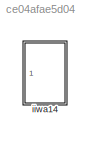
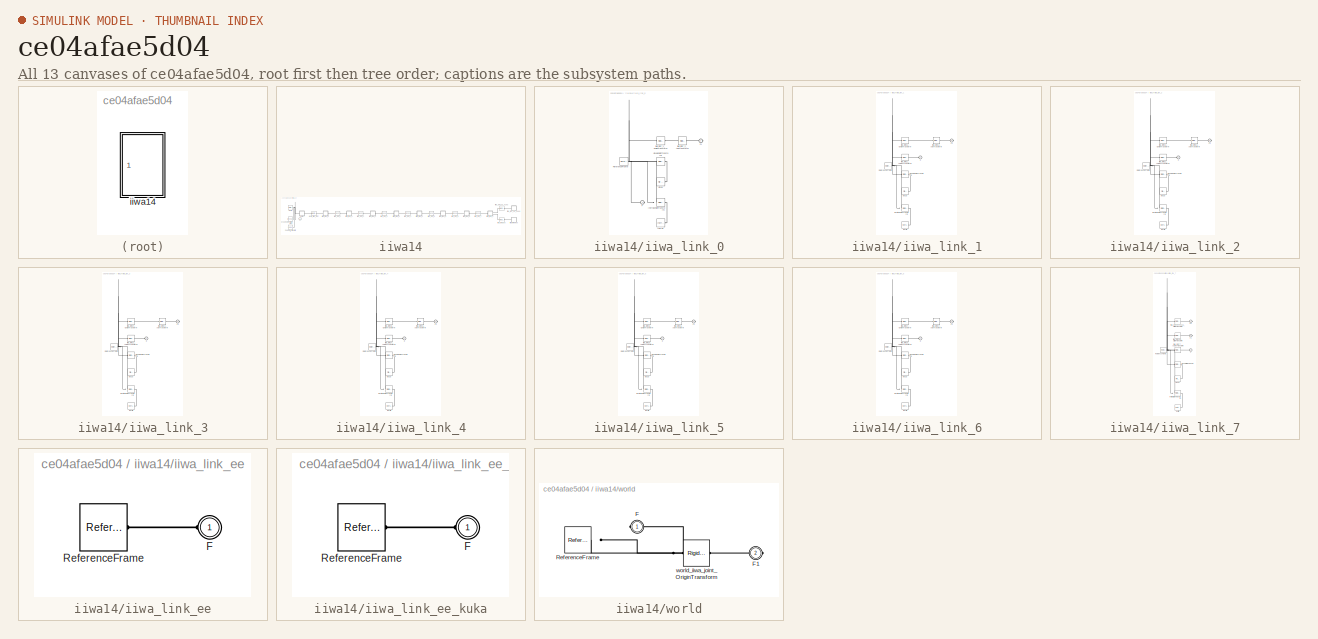
[diagram: thumbnail index - all 13 canvases of the model, root first then tree order]
MODEL slx_ce04afae5d04
KIND model
CONFIG AbsTol = auto
CONFIG EnableMultiTasking = off
CONFIG FixedStep = auto
CONFIG MaxStep = auto
CONFIG MinStep = auto
CONFIG RelTol = 1e-3
CONFIG SampleTimeConstraint = Unconstrained
CONFIG SolverName = VariableStepAuto
CONFIG StartTime = 0.0
CONFIG StopTime = 10.0
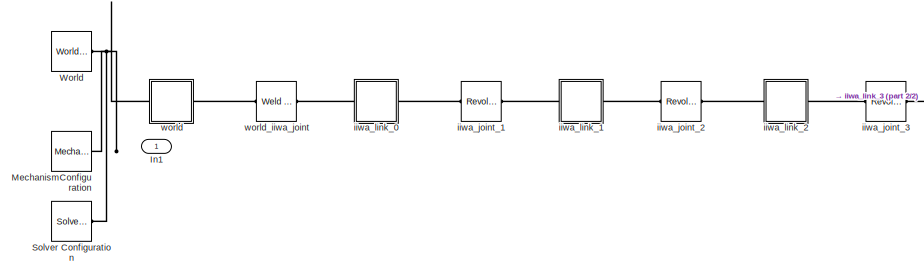
[diagram: iiwa14 - part 1/2, left side, full height]
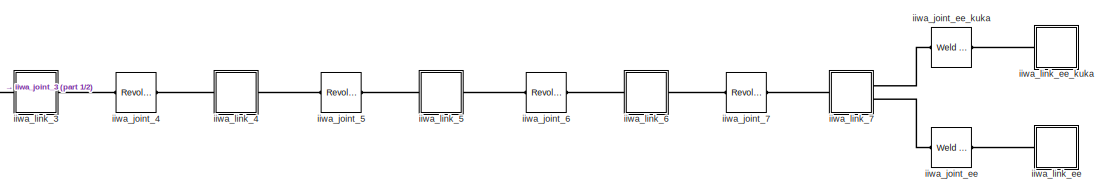
[diagram: iiwa14 - part 2/2, middle right region]
BLOCK [SubSystem] iiwa14
  Ports = [1]
  RequestExecContextInheritance = off
BLOCK [Inport] iiwa14/In1
BLOCK [Reference] iiwa14/MechanismConfiguration  REF=sm_lib/Utilities/Mechanism
Configuration
  Ports = [0, 0, 0, 0, 0, 0, 1]
  SourceBlock = sm_lib/Utilities/Mechanism\nConfiguration
  SourceProductBaseCode = MS
  SourceType = Mechanism\nConfiguration
BLOCK [Reference] iiwa14/Solver Configuration  REF=nesl_utility/Solver
Configuration
  Ports = [0, 0, 0, 0, 0, 0, 1]
  SourceBlock = nesl_utility/Solver\nConfiguration
  SourceProductBaseCode = SS
  SourceType = Solver\nConfiguration
BLOCK [Reference] iiwa14/World  REF=sm_lib/Frames and
Transforms/World Frame
  Ports = [0, 0, 0, 0, 0, 0, 1]
  SourceBlock = sm_lib/Frames and\nTransforms/World Frame
  SourceProductBaseCode = MS
  SourceType = World Frame
BLOCK [Reference] iiwa14/iiwa_joint_1  REF=sm_lib/Joints/Revolute Joint
  Ports = [0, 0, 0, 0, 0, 1, 1]
  SourceBlock = sm_lib/Joints/Revolute Joint
  SourceProductBaseCode = MS
  SourceType = Revolute Joint
BLOCK [Reference] iiwa14/iiwa_joint_2  REF=sm_lib/Joints/Revolute Joint
  Ports = [0, 0, 0, 0, 0, 1, 1]
  SourceBlock = sm_lib/Joints/Revolute Joint
  SourceProductBaseCode = MS
  SourceType = Revolute Joint
BLOCK [Reference] iiwa14/iiwa_joint_3  REF=sm_lib/Joints/Revolute Joint
  Ports = [0, 0, 0, 0, 0, 1, 1]
  SourceBlock = sm_lib/Joints/Revolute Joint
  SourceProductBaseCode = MS
  SourceType = Revolute Joint
BLOCK [Reference] iiwa14/iiwa_joint_4  REF=sm_lib/Joints/Revolute Joint
  Ports = [0, 0, 0, 0, 0, 1, 1]
  SourceBlock = sm_lib/Joints/Revolute Joint
  SourceProductBaseCode = MS
  SourceType = Revolute Joint
BLOCK [Reference] iiwa14/iiwa_joint_5  REF=sm_lib/Joints/Revolute Joint
  Ports = [0, 0, 0, 0, 0, 1, 1]
  SourceBlock = sm_lib/Joints/Revolute Joint
  SourceProductBaseCode = MS
  SourceType = Revolute Joint
BLOCK [Reference] iiwa14/iiwa_joint_6  REF=sm_lib/Joints/Revolute Joint
  Ports = [0, 0, 0, 0, 0, 1, 1]
  SourceBlock = sm_lib/Joints/Revolute Joint
  SourceProductBaseCode = MS
  SourceType = Revolute Joint
BLOCK [Reference] iiwa14/iiwa_joint_7  REF=sm_lib/Joints/Revolute Joint
  Ports = [0, 0, 0, 0, 0, 1, 1]
  SourceBlock = sm_lib/Joints/Revolute Joint
  SourceProductBaseCode = MS
  SourceType = Revolute Joint
BLOCK [Reference] iiwa14/iiwa_joint_ee  REF=sm_lib/Joints/Weld Joint
  Ports = [0, 0, 0, 0, 0, 1, 1]
  SourceBlock = sm_lib/Joints/Weld Joint
  SourceProductBaseCode = MS
  SourceType = Weld Joint
BLOCK [Reference] iiwa14/iiwa_joint_ee_kuka  REF=sm_lib/Joints/Weld Joint
  Ports = [0, 0, 0, 0, 0, 1, 1]
  SourceBlock = sm_lib/Joints/Weld Joint
  SourceProductBaseCode = MS
  SourceType = Weld Joint
BLOCK [SubSystem] iiwa14/iiwa_link_0
  Ports = [0, 0, 0, 0, 0, 1, 1]
  RequestExecContextInheritance = off
BLOCK [PMIOPort] iiwa14/iiwa_link_0/F
  Side = Left
BLOCK [PMIOPort] iiwa14/iiwa_link_0/F1
  Port = 2
  Side = Right
BLOCK [Reference] iiwa14/iiwa_link_0/Inertia  REF=sm_lib/Body Elements/Inertia
  Ports = [0, 0, 0, 0, 0, 0, 1]
  SourceBlock = sm_lib/Body Elements/Inertia
  SourceProductBaseCode = MS
  SourceType = Inertia
BLOCK [Reference] iiwa14/iiwa_link_0/InertiaOriginTransform  REF=sm_lib/Frames and
Transforms/Rigid
Transform
  Ports = [0, 0, 0, 0, 0, 1, 1]
  SourceBlock = sm_lib/Frames and\nTransforms/Rigid\nTransform
  SourceProductBaseCode = MS
  SourceType = Rigid\nTransform
BLOCK [Reference] iiwa14/iiwa_link_0/ReferenceFrame  REF=sm_lib/Frames and
Transforms/Reference
Frame
  Ports = [0, 0, 0, 0, 0, 0, 1]
  SourceBlock = sm_lib/Frames and\nTransforms/Reference\nFrame
  SourceProductBaseCode = MS
  SourceType = Reference\nFrame
BLOCK [Reference] iiwa14/iiwa_link_0/Visual  REF=sm_lib/Body Elements/File Solid
  Ports = [0, 0, 0, 0, 0, 0, 1]
  SourceBlock = sm_lib/Body Elements/File Solid
  SourceProductBaseCode = MS
  SourceType = File Solid
BLOCK [Reference] iiwa14/iiwa_link_0/VisualOriginTransform  REF=sm_lib/Frames and
Transforms/Rigid
Transform
  Ports = [0, 0, 0, 0, 0, 1, 1]
  SourceBlock = sm_lib/Frames and\nTransforms/Rigid\nTransform
  SourceProductBaseCode = MS
  SourceType = Rigid\nTransform
BLOCK [Reference] iiwa14/iiwa_link_0/iiwa_joint_1_AxisTransform  REF=sm_lib/Frames and
Transforms/Rigid
Transform
  Ports = [0, 0, 0, 0, 0, 1, 1]
  SourceBlock = sm_lib/Frames and\nTransforms/Rigid\nTransform
  SourceProductBaseCode = MS
  SourceType = Rigid\nTransform
BLOCK [Reference] iiwa14/iiwa_link_0/iiwa_joint_1_OriginTransform  REF=sm_lib/Frames and
Transforms/Rigid
Transform
  Ports = [0, 0, 0, 0, 0, 1, 1]
  SourceBlock = sm_lib/Frames and\nTransforms/Rigid\nTransform
  SourceProductBaseCode = MS
  SourceType = Rigid\nTransform
BLOCK [SubSystem] iiwa14/iiwa_link_1
  Ports = [0, 0, 0, 0, 0, 1, 1]
  RequestExecContextInheritance = off
BLOCK [PMIOPort] iiwa14/iiwa_link_1/F
  Side = Left
BLOCK [PMIOPort] iiwa14/iiwa_link_1/F1
  Port = 2
  Side = Right
BLOCK [Reference] iiwa14/iiwa_link_1/Inertia  REF=sm_lib/Body Elements/Inertia
  Ports = [0, 0, 0, 0, 0, 0, 1]
  SourceBlock = sm_lib/Body Elements/Inertia
  SourceProductBaseCode = MS
  SourceType = Inertia
BLOCK [Reference] iiwa14/iiwa_link_1/InertiaOriginTransform  REF=sm_lib/Frames and
Transforms/Rigid
Transform
  Ports = [0, 0, 0, 0, 0, 1, 1]
  SourceBlock = sm_lib/Frames and\nTransforms/Rigid\nTransform
  SourceProductBaseCode = MS
  SourceType = Rigid\nTransform
BLOCK [Reference] iiwa14/iiwa_link_1/ReferenceFrame  REF=sm_lib/Frames and
Transforms/Reference
Frame
  Ports = [0, 0, 0, 0, 0, 0, 1]
  SourceBlock = sm_lib/Frames and\nTransforms/Reference\nFrame
  SourceProductBaseCode = MS
  SourceType = Reference\nFrame
BLOCK [Reference] iiwa14/iiwa_link_1/Visual  REF=sm_lib/Body Elements/File Solid
  Ports = [0, 0, 0, 0, 0, 0, 1]
  SourceBlock = sm_lib/Body Elements/File Solid
  SourceProductBaseCode = MS
  SourceType = File Solid
BLOCK [Reference] iiwa14/iiwa_link_1/VisualOriginTransform  REF=sm_lib/Frames and
Transforms/Rigid
Transform
  Ports = [0, 0, 0, 0, 0, 1, 1]
  SourceBlock = sm_lib/Frames and\nTransforms/Rigid\nTransform
  SourceProductBaseCode = MS
  SourceType = Rigid\nTransform
BLOCK [Reference] iiwa14/iiwa_link_1/iiwa_joint_1_AxisInvTransform  REF=sm_lib/Frames and
Transforms/Rigid
Transform
  Ports = [0, 0, 0, 0, 0, 1, 1]
  SourceBlock = sm_lib/Frames and\nTransforms/Rigid\nTransform
  SourceProductBaseCode = MS
  SourceType = Rigid\nTransform
BLOCK [Reference] iiwa14/iiwa_link_1/iiwa_joint_2_AxisTransform  REF=sm_lib/Frames and
Transforms/Rigid
Transform
  Ports = [0, 0, 0, 0, 0, 1, 1]
  SourceBlock = sm_lib/Frames and\nTransforms/Rigid\nTransform
  SourceProductBaseCode = MS
  SourceType = Rigid\nTransform
BLOCK [Reference] iiwa14/iiwa_link_1/iiwa_joint_2_OriginTransform  REF=sm_lib/Frames and
Transforms/Rigid
Transform
  Ports = [0, 0, 0, 0, 0, 1, 1]
  SourceBlock = sm_lib/Frames and\nTransforms/Rigid\nTransform
  SourceProductBaseCode = MS
  SourceType = Rigid\nTransform
BLOCK [SubSystem] iiwa14/iiwa_link_2
  Ports = [0, 0, 0, 0, 0, 1, 1]
  RequestExecContextInheritance = off
BLOCK [PMIOPort] iiwa14/iiwa_link_2/F
  Side = Left
BLOCK [PMIOPort] iiwa14/iiwa_link_2/F1
  Port = 2
  Side = Right
BLOCK [Reference] iiwa14/iiwa_link_2/Inertia  REF=sm_lib/Body Elements/Inertia
  Ports = [0, 0, 0, 0, 0, 0, 1]
  SourceBlock = sm_lib/Body Elements/Inertia
  SourceProductBaseCode = MS
  SourceType = Inertia
BLOCK [Reference] iiwa14/iiwa_link_2/InertiaOriginTransform  REF=sm_lib/Frames and
Transforms/Rigid
Transform
  Ports = [0, 0, 0, 0, 0, 1, 1]
  SourceBlock = sm_lib/Frames and\nTransforms/Rigid\nTransform
  SourceProductBaseCode = MS
  SourceType = Rigid\nTransform
BLOCK [Reference] iiwa14/iiwa_link_2/ReferenceFrame  REF=sm_lib/Frames and
Transforms/Reference
Frame
  Ports = [0, 0, 0, 0, 0, 0, 1]
  SourceBlock = sm_lib/Frames and\nTransforms/Reference\nFrame
  SourceProductBaseCode = MS
  SourceType = Reference\nFrame
BLOCK [Reference] iiwa14/iiwa_link_2/Visual  REF=sm_lib/Body Elements/File Solid
  Ports = [0, 0, 0, 0, 0, 0, 1]
  SourceBlock = sm_lib/Body Elements/File Solid
  SourceProductBaseCode = MS
  SourceType = File Solid
BLOCK [Reference] iiwa14/iiwa_link_2/VisualOriginTransform  REF=sm_lib/Frames and
Transforms/Rigid
Transform
  Ports = [0, 0, 0, 0, 0, 1, 1]
  SourceBlock = sm_lib/Frames and\nTransforms/Rigid\nTransform
  SourceProductBaseCode = MS
  SourceType = Rigid\nTransform
BLOCK [Reference] iiwa14/iiwa_link_2/iiwa_joint_2_AxisInvTransform  REF=sm_lib/Frames and
Transforms/Rigid
Transform
  Ports = [0, 0, 0, 0, 0, 1, 1]
  SourceBlock = sm_lib/Frames and\nTransforms/Rigid\nTransform
  SourceProductBaseCode = MS
  SourceType = Rigid\nTransform
BLOCK [Reference] iiwa14/iiwa_link_2/iiwa_joint_3_AxisTransform  REF=sm_lib/Frames and
Transforms/Rigid
Transform
  Ports = [0, 0, 0, 0, 0, 1, 1]
  SourceBlock = sm_lib/Frames and\nTransforms/Rigid\nTransform
  SourceProductBaseCode = MS
  SourceType = Rigid\nTransform
BLOCK [Reference] iiwa14/iiwa_link_2/iiwa_joint_3_OriginTransform  REF=sm_lib/Frames and
Transforms/Rigid
Transform
  Ports = [0, 0, 0, 0, 0, 1, 1]
  SourceBlock = sm_lib/Frames and\nTransforms/Rigid\nTransform
  SourceProductBaseCode = MS
  SourceType = Rigid\nTransform
BLOCK [SubSystem] iiwa14/iiwa_link_3
  Ports = [0, 0, 0, 0, 0, 1, 1]
  RequestExecContextInheritance = off
BLOCK [PMIOPort] iiwa14/iiwa_link_3/F
  Side = Left
BLOCK [PMIOPort] iiwa14/iiwa_link_3/F1
  Port = 2
  Side = Right
BLOCK [Reference] iiwa14/iiwa_link_3/Inertia  REF=sm_lib/Body Elements/Inertia
  Ports = [0, 0, 0, 0, 0, 0, 1]
  SourceBlock = sm_lib/Body Elements/Inertia
  SourceProductBaseCode = MS
  SourceType = Inertia
BLOCK [Reference] iiwa14/iiwa_link_3/InertiaOriginTransform  REF=sm_lib/Frames and
Transforms/Rigid
Transform
  Ports = [0, 0, 0, 0, 0, 1, 1]
  SourceBlock = sm_lib/Frames and\nTransforms/Rigid\nTransform
  SourceProductBaseCode = MS
  SourceType = Rigid\nTransform
BLOCK [Reference] iiwa14/iiwa_link_3/ReferenceFrame  REF=sm_lib/Frames and
Transforms/Reference
Frame
  Ports = [0, 0, 0, 0, 0, 0, 1]
  SourceBlock = sm_lib/Frames and\nTransforms/Reference\nFrame
  SourceProductBaseCode = MS
  SourceType = Reference\nFrame
BLOCK [Reference] iiwa14/iiwa_link_3/Visual  REF=sm_lib/Body Elements/File Solid
  Ports = [0, 0, 0, 0, 0, 0, 1]
  SourceBlock = sm_lib/Body Elements/File Solid
  SourceProductBaseCode = MS
  SourceType = File Solid
BLOCK [Reference] iiwa14/iiwa_link_3/VisualOriginTransform  REF=sm_lib/Frames and
Transforms/Rigid
Transform
  Ports = [0, 0, 0, 0, 0, 1, 1]
  SourceBlock = sm_lib/Frames and\nTransforms/Rigid\nTransform
  SourceProductBaseCode = MS
  SourceType = Rigid\nTransform
BLOCK [Reference] iiwa14/iiwa_link_3/iiwa_joint_3_AxisInvTransform  REF=sm_lib/Frames and
Transforms/Rigid
Transform
  Ports = [0, 0, 0, 0, 0, 1, 1]
  SourceBlock = sm_lib/Frames and\nTransforms/Rigid\nTransform
  SourceProductBaseCode = MS
  SourceType = Rigid\nTransform
BLOCK [Reference] iiwa14/iiwa_link_3/iiwa_joint_4_AxisTransform  REF=sm_lib/Frames and
Transforms/Rigid
Transform
  Ports = [0, 0, 0, 0, 0, 1, 1]
  SourceBlock = sm_lib/Frames and\nTransforms/Rigid\nTransform
  SourceProductBaseCode = MS
  SourceType = Rigid\nTransform
BLOCK [Reference] iiwa14/iiwa_link_3/iiwa_joint_4_OriginTransform  REF=sm_lib/Frames and
Transforms/Rigid
Transform
  Ports = [0, 0, 0, 0, 0, 1, 1]
  SourceBlock = sm_lib/Frames and\nTransforms/Rigid\nTransform
  SourceProductBaseCode = MS
  SourceType = Rigid\nTransform
BLOCK [SubSystem] iiwa14/iiwa_link_4
  Ports = [0, 0, 0, 0, 0, 1, 1]
  RequestExecContextInheritance = off
BLOCK [PMIOPort] iiwa14/iiwa_link_4/F
  Side = Left
BLOCK [PMIOPort] iiwa14/iiwa_link_4/F1
  Port = 2
  Side = Right
BLOCK [Reference] iiwa14/iiwa_link_4/Inertia  REF=sm_lib/Body Elements/Inertia
  Ports = [0, 0, 0, 0, 0, 0, 1]
  SourceBlock = sm_lib/Body Elements/Inertia
  SourceProductBaseCode = MS
  SourceType = Inertia
BLOCK [Reference] iiwa14/iiwa_link_4/InertiaOriginTransform  REF=sm_lib/Frames and
Transforms/Rigid
Transform
  Ports = [0, 0, 0, 0, 0, 1, 1]
  SourceBlock = sm_lib/Frames and\nTransforms/Rigid\nTransform
  SourceProductBaseCode = MS
  SourceType = Rigid\nTransform
BLOCK [Reference] iiwa14/iiwa_link_4/ReferenceFrame  REF=sm_lib/Frames and
Transforms/Reference
Frame
  Ports = [0, 0, 0, 0, 0, 0, 1]
  SourceBlock = sm_lib/Frames and\nTransforms/Reference\nFrame
  SourceProductBaseCode = MS
  SourceType = Reference\nFrame
BLOCK [Reference] iiwa14/iiwa_link_4/Visual  REF=sm_lib/Body Elements/File Solid
  Ports = [0, 0, 0, 0, 0, 0, 1]
  SourceBlock = sm_lib/Body Elements/File Solid
  SourceProductBaseCode = MS
  SourceType = File Solid
BLOCK [Reference] iiwa14/iiwa_link_4/VisualOriginTransform  REF=sm_lib/Frames and
Transforms/Rigid
Transform
  Ports = [0, 0, 0, 0, 0, 1, 1]
  SourceBlock = sm_lib/Frames and\nTransforms/Rigid\nTransform
  SourceProductBaseCode = MS
  SourceType = Rigid\nTransform
BLOCK [Reference] iiwa14/iiwa_link_4/iiwa_joint_4_AxisInvTransform  REF=sm_lib/Frames and
Transforms/Rigid
Transform
  Ports = [0, 0, 0, 0, 0, 1, 1]
  SourceBlock = sm_lib/Frames and\nTransforms/Rigid\nTransform
  SourceProductBaseCode = MS
  SourceType = Rigid\nTransform
BLOCK [Reference] iiwa14/iiwa_link_4/iiwa_joint_5_AxisTransform  REF=sm_lib/Frames and
Transforms/Rigid
Transform
  Ports = [0, 0, 0, 0, 0, 1, 1]
  SourceBlock = sm_lib/Frames and\nTransforms/Rigid\nTransform
  SourceProductBaseCode = MS
  SourceType = Rigid\nTransform
BLOCK [Reference] iiwa14/iiwa_link_4/iiwa_joint_5_OriginTransform  REF=sm_lib/Frames and
Transforms/Rigid
Transform
  Ports = [0, 0, 0, 0, 0, 1, 1]
  SourceBlock = sm_lib/Frames and\nTransforms/Rigid\nTransform
  SourceProductBaseCode = MS
  SourceType = Rigid\nTransform
BLOCK [SubSystem] iiwa14/iiwa_link_5
  Ports = [0, 0, 0, 0, 0, 1, 1]
  RequestExecContextInheritance = off
BLOCK [PMIOPort] iiwa14/iiwa_link_5/F
  Side = Left
BLOCK [PMIOPort] iiwa14/iiwa_link_5/F1
  Port = 2
  Side = Right
BLOCK [Reference] iiwa14/iiwa_link_5/Inertia  REF=sm_lib/Body Elements/Inertia
  Ports = [0, 0, 0, 0, 0, 0, 1]
  SourceBlock = sm_lib/Body Elements/Inertia
  SourceProductBaseCode = MS
  SourceType = Inertia
BLOCK [Reference] iiwa14/iiwa_link_5/InertiaOriginTransform  REF=sm_lib/Frames and
Transforms/Rigid
Transform
  Ports = [0, 0, 0, 0, 0, 1, 1]
  SourceBlock = sm_lib/Frames and\nTransforms/Rigid\nTransform
  SourceProductBaseCode = MS
  SourceType = Rigid\nTransform
BLOCK [Reference] iiwa14/iiwa_link_5/ReferenceFrame  REF=sm_lib/Frames and
Transforms/Reference
Frame
  Ports = [0, 0, 0, 0, 0, 0, 1]
  SourceBlock = sm_lib/Frames and\nTransforms/Reference\nFrame
  SourceProductBaseCode = MS
  SourceType = Reference\nFrame
BLOCK [Reference] iiwa14/iiwa_link_5/Visual  REF=sm_lib/Body Elements/File Solid
  Ports = [0, 0, 0, 0, 0, 0, 1]
  SourceBlock = sm_lib/Body Elements/File Solid
  SourceProductBaseCode = MS
  SourceType = File Solid
BLOCK [Reference] iiwa14/iiwa_link_5/VisualOriginTransform  REF=sm_lib/Frames and
Transforms/Rigid
Transform
  Ports = [0, 0, 0, 0, 0, 1, 1]
  SourceBlock = sm_lib/Frames and\nTransforms/Rigid\nTransform
  SourceProductBaseCode = MS
  SourceType = Rigid\nTransform
BLOCK [Reference] iiwa14/iiwa_link_5/iiwa_joint_5_AxisInvTransform  REF=sm_lib/Frames and
Transforms/Rigid
Transform
  Ports = [0, 0, 0, 0, 0, 1, 1]
  SourceBlock = sm_lib/Frames and\nTransforms/Rigid\nTransform
  SourceProductBaseCode = MS
  SourceType = Rigid\nTransform
BLOCK [Reference] iiwa14/iiwa_link_5/iiwa_joint_6_AxisTransform  REF=sm_lib/Frames and
Transforms/Rigid
Transform
  Ports = [0, 0, 0, 0, 0, 1, 1]
  SourceBlock = sm_lib/Frames and\nTransforms/Rigid\nTransform
  SourceProductBaseCode = MS
  SourceType = Rigid\nTransform
BLOCK [Reference] iiwa14/iiwa_link_5/iiwa_joint_6_OriginTransform  REF=sm_lib/Frames and
Transforms/Rigid
Transform
  Ports = [0, 0, 0, 0, 0, 1, 1]
  SourceBlock = sm_lib/Frames and\nTransforms/Rigid\nTransform
  SourceProductBaseCode = MS
  SourceType = Rigid\nTransform
BLOCK [SubSystem] iiwa14/iiwa_link_6
  Ports = [0, 0, 0, 0, 0, 1, 1]
  RequestExecContextInheritance = off
BLOCK [PMIOPort] iiwa14/iiwa_link_6/F
  Side = Left
BLOCK [PMIOPort] iiwa14/iiwa_link_6/F1
  Port = 2
  Side = Right
BLOCK [Reference] iiwa14/iiwa_link_6/Inertia  REF=sm_lib/Body Elements/Inertia
  Ports = [0, 0, 0, 0, 0, 0, 1]
  SourceBlock = sm_lib/Body Elements/Inertia
  SourceProductBaseCode = MS
  SourceType = Inertia
BLOCK [Reference] iiwa14/iiwa_link_6/InertiaOriginTransform  REF=sm_lib/Frames and
Transforms/Rigid
Transform
  Ports = [0, 0, 0, 0, 0, 1, 1]
  SourceBlock = sm_lib/Frames and\nTransforms/Rigid\nTransform
  SourceProductBaseCode = MS
  SourceType = Rigid\nTransform
BLOCK [Reference] iiwa14/iiwa_link_6/ReferenceFrame  REF=sm_lib/Frames and
Transforms/Reference
Frame
  Ports = [0, 0, 0, 0, 0, 0, 1]
  SourceBlock = sm_lib/Frames and\nTransforms/Reference\nFrame
  SourceProductBaseCode = MS
  SourceType = Reference\nFrame
BLOCK [Reference] iiwa14/iiwa_link_6/Visual  REF=sm_lib/Body Elements/File Solid
  Ports = [0, 0, 0, 0, 0, 0, 1]
  SourceBlock = sm_lib/Body Elements/File Solid
  SourceProductBaseCode = MS
  SourceType = File Solid
BLOCK [Reference] iiwa14/iiwa_link_6/VisualOriginTransform  REF=sm_lib/Frames and
Transforms/Rigid
Transform
  Ports = [0, 0, 0, 0, 0, 1, 1]
  SourceBlock = sm_lib/Frames and\nTransforms/Rigid\nTransform
  SourceProductBaseCode = MS
  SourceType = Rigid\nTransform
BLOCK [Reference] iiwa14/iiwa_link_6/iiwa_joint_6_AxisInvTransform  REF=sm_lib/Frames and
Transforms/Rigid
Transform
  Ports = [0, 0, 0, 0, 0, 1, 1]
  SourceBlock = sm_lib/Frames and\nTransforms/Rigid\nTransform
  SourceProductBaseCode = MS
  SourceType = Rigid\nTransform
BLOCK [Reference] iiwa14/iiwa_link_6/iiwa_joint_7_AxisTransform  REF=sm_lib/Frames and
Transforms/Rigid
Transform
  Ports = [0, 0, 0, 0, 0, 1, 1]
  SourceBlock = sm_lib/Frames and\nTransforms/Rigid\nTransform
  SourceProductBaseCode = MS
  SourceType = Rigid\nTransform
BLOCK [Reference] iiwa14/iiwa_link_6/iiwa_joint_7_OriginTransform  REF=sm_lib/Frames and
Transforms/Rigid
Transform
  Ports = [0, 0, 0, 0, 0, 1, 1]
  SourceBlock = sm_lib/Frames and\nTransforms/Rigid\nTransform
  SourceProductBaseCode = MS
  SourceType = Rigid\nTransform
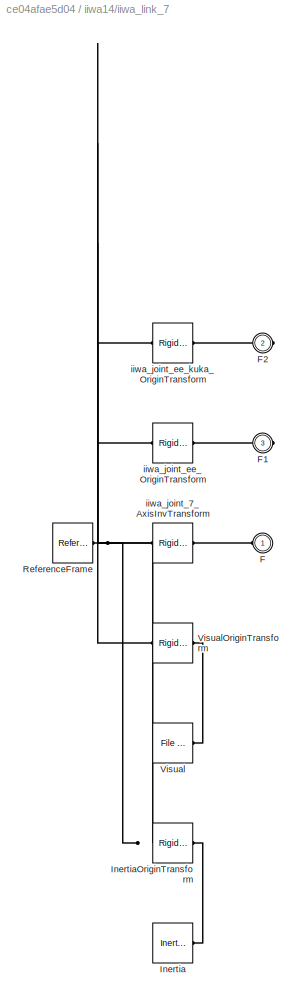
BLOCK [SubSystem] iiwa14/iiwa_link_7
  Ports = [0, 0, 0, 0, 0, 1, 2]
  RequestExecContextInheritance = off
BLOCK [PMIOPort] iiwa14/iiwa_link_7/F
  Side = Left
BLOCK [PMIOPort] iiwa14/iiwa_link_7/F1
  Port = 3
  Side = Right
BLOCK [PMIOPort] iiwa14/iiwa_link_7/F2
  Port = 2
  Side = Right
BLOCK [Reference] iiwa14/iiwa_link_7/Inertia  REF=sm_lib/Body Elements/Inertia
  Ports = [0, 0, 0, 0, 0, 0, 1]
  SourceBlock = sm_lib/Body Elements/Inertia
  SourceProductBaseCode = MS
  SourceType = Inertia
BLOCK [Reference] iiwa14/iiwa_link_7/InertiaOriginTransform  REF=sm_lib/Frames and
Transforms/Rigid
Transform
  Ports = [0, 0, 0, 0, 0, 1, 1]
  SourceBlock = sm_lib/Frames and\nTransforms/Rigid\nTransform
  SourceProductBaseCode = MS
  SourceType = Rigid\nTransform
BLOCK [Reference] iiwa14/iiwa_link_7/ReferenceFrame  REF=sm_lib/Frames and
Transforms/Reference
Frame
  Ports = [0, 0, 0, 0, 0, 0, 1]
  SourceBlock = sm_lib/Frames and\nTransforms/Reference\nFrame
  SourceProductBaseCode = MS
  SourceType = Reference\nFrame
BLOCK [Reference] iiwa14/iiwa_link_7/Visual  REF=sm_lib/Body Elements/File Solid
  Ports = [0, 0, 0, 0, 0, 0, 1]
  SourceBlock = sm_lib/Body Elements/File Solid
  SourceProductBaseCode = MS
  SourceType = File Solid
BLOCK [Reference] iiwa14/iiwa_link_7/VisualOriginTransform  REF=sm_lib/Frames and
Transforms/Rigid
Transform
  Ports = [0, 0, 0, 0, 0, 1, 1]
  SourceBlock = sm_lib/Frames and\nTransforms/Rigid\nTransform
  SourceProductBaseCode = MS
  SourceType = Rigid\nTransform
BLOCK [Reference] iiwa14/iiwa_link_7/iiwa_joint_7_AxisInvTransform  REF=sm_lib/Frames and
Transforms/Rigid
Transform
  Ports = [0, 0, 0, 0, 0, 1, 1]
  SourceBlock = sm_lib/Frames and\nTransforms/Rigid\nTransform
  SourceProductBaseCode = MS
  SourceType = Rigid\nTransform
BLOCK [Reference] iiwa14/iiwa_link_7/iiwa_joint_ee_OriginTransform  REF=sm_lib/Frames and
Transforms/Rigid
Transform
  Ports = [0, 0, 0, 0, 0, 1, 1]
  SourceBlock = sm_lib/Frames and\nTransforms/Rigid\nTransform
  SourceProductBaseCode = MS
  SourceType = Rigid\nTransform
BLOCK [Reference] iiwa14/iiwa_link_7/iiwa_joint_ee_kuka_OriginTransform  REF=sm_lib/Frames and
Transforms/Rigid
Transform
  Ports = [0, 0, 0, 0, 0, 1, 1]
  SourceBlock = sm_lib/Frames and\nTransforms/Rigid\nTransform
  SourceProductBaseCode = MS
  SourceType = Rigid\nTransform
BLOCK [SubSystem] iiwa14/iiwa_link_ee
  Ports = [0, 0, 0, 0, 0, 1]
  RequestExecContextInheritance = off
BLOCK [PMIOPort] iiwa14/iiwa_link_ee/F
  Side = Left
BLOCK [Reference] iiwa14/iiwa_link_ee/ReferenceFrame  REF=sm_lib/Frames and
Transforms/Reference
Frame
  Ports = [0, 0, 0, 0, 0, 0, 1]
  SourceBlock = sm_lib/Frames and\nTransforms/Reference\nFrame
  SourceProductBaseCode = MS
  SourceType = Reference\nFrame
BLOCK [SubSystem] iiwa14/iiwa_link_ee_kuka
  Ports = [0, 0, 0, 0, 0, 1]
  RequestExecContextInheritance = off
BLOCK [PMIOPort] iiwa14/iiwa_link_ee_kuka/F
  Side = Left
BLOCK [Reference] iiwa14/iiwa_link_ee_kuka/ReferenceFrame  REF=sm_lib/Frames and
Transforms/Reference
Frame
  Ports = [0, 0, 0, 0, 0, 0, 1]
  SourceBlock = sm_lib/Frames and\nTransforms/Reference\nFrame
  SourceProductBaseCode = MS
  SourceType = Reference\nFrame
BLOCK [SubSystem] iiwa14/world
  Ports = [0, 0, 0, 0, 0, 1, 1]
  RequestExecContextInheritance = off
BLOCK [PMIOPort] iiwa14/world/F
  Side = Left
BLOCK [PMIOPort] iiwa14/world/F1
  Port = 2
  Side = Right
BLOCK [Reference] iiwa14/world/ReferenceFrame  REF=sm_lib/Frames and
Transforms/Reference
Frame
  Ports = [0, 0, 0, 0, 0, 0, 1]
  SourceBlock = sm_lib/Frames and\nTransforms/Reference\nFrame
  SourceProductBaseCode = MS
  SourceType = Reference\nFrame
BLOCK [Reference] iiwa14/world/world_iiwa_joint_OriginTransform  REF=sm_lib/Frames and
Transforms/Rigid
Transform
  Ports = [0, 0, 0, 0, 0, 1, 1]
  SourceBlock = sm_lib/Frames and\nTransforms/Rigid\nTransform
  SourceProductBaseCode = MS
  SourceType = Rigid\nTransform
BLOCK [Reference] iiwa14/world_iiwa_joint  REF=sm_lib/Joints/Weld Joint
  Ports = [0, 0, 0, 0, 0, 1, 1]
  SourceBlock = sm_lib/Joints/Weld Joint
  SourceProductBaseCode = MS
  SourceType = Weld Joint
PNET net1: iiwa14/MechanismConfiguration:RConn1 -- iiwa14/Solver Configuration:RConn1 -- iiwa14/World:RConn1 -- iiwa14/world:LConn1
PLINE iiwa14/iiwa_joint_1:LConn1 -- iiwa14/iiwa_link_0:RConn1
PLINE iiwa14/iiwa_joint_1:RConn1 -- iiwa14/iiwa_link_1:LConn1
PLINE iiwa14/iiwa_joint_2:LConn1 -- iiwa14/iiwa_link_1:RConn1
PLINE iiwa14/iiwa_joint_2:RConn1 -- iiwa14/iiwa_link_2:LConn1
PLINE iiwa14/iiwa_joint_3:LConn1 -- iiwa14/iiwa_link_2:RConn1
PLINE iiwa14/iiwa_joint_3:RConn1 -- iiwa14/iiwa_link_3:LConn1
PLINE iiwa14/iiwa_joint_4:LConn1 -- iiwa14/iiwa_link_3:RConn1
PLINE iiwa14/iiwa_joint_4:RConn1 -- iiwa14/iiwa_link_4:LConn1
PLINE iiwa14/iiwa_joint_5:LConn1 -- iiwa14/iiwa_link_4:RConn1
PLINE iiwa14/iiwa_joint_5:RConn1 -- iiwa14/iiwa_link_5:LConn1
PLINE iiwa14/iiwa_joint_6:LConn1 -- iiwa14/iiwa_link_5:RConn1
PLINE iiwa14/iiwa_joint_6:RConn1 -- iiwa14/iiwa_link_6:LConn1
PLINE iiwa14/iiwa_joint_7:LConn1 -- iiwa14/iiwa_link_6:RConn1
PLINE iiwa14/iiwa_joint_7:RConn1 -- iiwa14/iiwa_link_7:LConn1
PLINE iiwa14/iiwa_joint_ee:LConn1 -- iiwa14/iiwa_link_7:RConn2
PLINE iiwa14/iiwa_joint_ee:RConn1 -- iiwa14/iiwa_link_ee:LConn1
PLINE iiwa14/iiwa_joint_ee_kuka:LConn1 -- iiwa14/iiwa_link_7:RConn1
PLINE iiwa14/iiwa_joint_ee_kuka:RConn1 -- iiwa14/iiwa_link_ee_kuka:LConn1
PLINE iiwa14/iiwa_link_0/F1:RConn1 -- iiwa14/iiwa_link_0/iiwa_joint_1_AxisTransform:RConn1
PNET net2: iiwa14/iiwa_link_0/F:RConn1 -- iiwa14/iiwa_link_0/InertiaOriginTransform:LConn1 -- iiwa14/iiwa_link_0/ReferenceFrame:RConn1 -- iiwa14/iiwa_link_0/VisualOriginTransform:LConn1 -- iiwa14/iiwa_link_0/iiwa_joint_1_OriginTransform:LConn1
PLINE iiwa14/iiwa_link_0/Inertia:RConn1 -- iiwa14/iiwa_link_0/InertiaOriginTransform:RConn1
PLINE iiwa14/iiwa_link_0/Visual:RConn1 -- iiwa14/iiwa_link_0/VisualOriginTransform:RConn1
PLINE iiwa14/iiwa_link_0/iiwa_joint_1_AxisTransform:LConn1 -- iiwa14/iiwa_link_0/iiwa_joint_1_OriginTransform:RConn1
PLINE iiwa14/iiwa_link_0:LConn1 -- iiwa14/world_iiwa_joint:RConn1
PLINE iiwa14/iiwa_link_1/F1:RConn1 -- iiwa14/iiwa_link_1/iiwa_joint_2_AxisTransform:RConn1
PLINE iiwa14/iiwa_link_1/F:RConn1 -- iiwa14/iiwa_link_1/iiwa_joint_1_AxisInvTransform:RConn1
PLINE iiwa14/iiwa_link_1/Inertia:RConn1 -- iiwa14/iiwa_link_1/InertiaOriginTransform:RConn1
PNET net3: iiwa14/iiwa_link_1/InertiaOriginTransform:LConn1 -- iiwa14/iiwa_link_1/ReferenceFrame:RConn1 -- iiwa14/iiwa_link_1/VisualOriginTransform:LConn1 -- iiwa14/iiwa_link_1/iiwa_joint_1_AxisInvTransform:LConn1 -- iiwa14/iiwa_link_1/iiwa_joint_2_OriginTransform:LConn1
PLINE iiwa14/iiwa_link_1/Visual:RConn1 -- iiwa14/iiwa_link_1/VisualOriginTransform:RConn1
PLINE iiwa14/iiwa_link_1/iiwa_joint_2_AxisTransform:LConn1 -- iiwa14/iiwa_link_1/iiwa_joint_2_OriginTransform:RConn1
PLINE iiwa14/iiwa_link_2/F1:RConn1 -- iiwa14/iiwa_link_2/iiwa_joint_3_AxisTransform:RConn1
PLINE iiwa14/iiwa_link_2/F:RConn1 -- iiwa14/iiwa_link_2/iiwa_joint_2_AxisInvTransform:RConn1
PLINE iiwa14/iiwa_link_2/Inertia:RConn1 -- iiwa14/iiwa_link_2/InertiaOriginTransform:RConn1
PNET net4: iiwa14/iiwa_link_2/InertiaOriginTransform:LConn1 -- iiwa14/iiwa_link_2/ReferenceFrame:RConn1 -- iiwa14/iiwa_link_2/VisualOriginTransform:LConn1 -- iiwa14/iiwa_link_2/iiwa_joint_2_AxisInvTransform:LConn1 -- iiwa14/iiwa_link_2/iiwa_joint_3_OriginTransform:LConn1
PLINE iiwa14/iiwa_link_2/Visual:RConn1 -- iiwa14/iiwa_link_2/VisualOriginTransform:RConn1
PLINE iiwa14/iiwa_link_2/iiwa_joint_3_AxisTransform:LConn1 -- iiwa14/iiwa_link_2/iiwa_joint_3_OriginTransform:RConn1
PLINE iiwa14/iiwa_link_3/F1:RConn1 -- iiwa14/iiwa_link_3/iiwa_joint_4_AxisTransform:RConn1
PLINE iiwa14/iiwa_link_3/F:RConn1 -- iiwa14/iiwa_link_3/iiwa_joint_3_AxisInvTransform:RConn1
PLINE iiwa14/iiwa_link_3/Inertia:RConn1 -- iiwa14/iiwa_link_3/InertiaOriginTransform:RConn1
PNET net5: iiwa14/iiwa_link_3/InertiaOriginTransform:LConn1 -- iiwa14/iiwa_link_3/ReferenceFrame:RConn1 -- iiwa14/iiwa_link_3/VisualOriginTransform:LConn1 -- iiwa14/iiwa_link_3/iiwa_joint_3_AxisInvTransform:LConn1 -- iiwa14/iiwa_link_3/iiwa_joint_4_OriginTransform:LConn1
PLINE iiwa14/iiwa_link_3/Visual:RConn1 -- iiwa14/iiwa_link_3/VisualOriginTransform:RConn1
PLINE iiwa14/iiwa_link_3/iiwa_joint_4_AxisTransform:LConn1 -- iiwa14/iiwa_link_3/iiwa_joint_4_OriginTransform:RConn1
PLINE iiwa14/iiwa_link_4/F1:RConn1 -- iiwa14/iiwa_link_4/iiwa_joint_5_AxisTransform:RConn1
PLINE iiwa14/iiwa_link_4/F:RConn1 -- iiwa14/iiwa_link_4/iiwa_joint_4_AxisInvTransform:RConn1
PLINE iiwa14/iiwa_link_4/Inertia:RConn1 -- iiwa14/iiwa_link_4/InertiaOriginTransform:RConn1
PNET net6: iiwa14/iiwa_link_4/InertiaOriginTransform:LConn1 -- iiwa14/iiwa_link_4/ReferenceFrame:RConn1 -- iiwa14/iiwa_link_4/VisualOriginTransform:LConn1 -- iiwa14/iiwa_link_4/iiwa_joint_4_AxisInvTransform:LConn1 -- iiwa14/iiwa_link_4/iiwa_joint_5_OriginTransform:LConn1
PLINE iiwa14/iiwa_link_4/Visual:RConn1 -- iiwa14/iiwa_link_4/VisualOriginTransform:RConn1
PLINE iiwa14/iiwa_link_4/iiwa_joint_5_AxisTransform:LConn1 -- iiwa14/iiwa_link_4/iiwa_joint_5_OriginTransform:RConn1
PLINE iiwa14/iiwa_link_5/F1:RConn1 -- iiwa14/iiwa_link_5/iiwa_joint_6_AxisTransform:RConn1
PLINE iiwa14/iiwa_link_5/F:RConn1 -- iiwa14/iiwa_link_5/iiwa_joint_5_AxisInvTransform:RConn1
PLINE iiwa14/iiwa_link_5/Inertia:RConn1 -- iiwa14/iiwa_link_5/InertiaOriginTransform:RConn1
PNET net7: iiwa14/iiwa_link_5/InertiaOriginTransform:LConn1 -- iiwa14/iiwa_link_5/ReferenceFrame:RConn1 -- iiwa14/iiwa_link_5/VisualOriginTransform:LConn1 -- iiwa14/iiwa_link_5/iiwa_joint_5_AxisInvTransform:LConn1 -- iiwa14/iiwa_link_5/iiwa_joint_6_OriginTransform:LConn1
PLINE iiwa14/iiwa_link_5/Visual:RConn1 -- iiwa14/iiwa_link_5/VisualOriginTransform:RConn1
PLINE iiwa14/iiwa_link_5/iiwa_joint_6_AxisTransform:LConn1 -- iiwa14/iiwa_link_5/iiwa_joint_6_OriginTransform:RConn1
PLINE iiwa14/iiwa_link_6/F1:RConn1 -- iiwa14/iiwa_link_6/iiwa_joint_7_AxisTransform:RConn1
PLINE iiwa14/iiwa_link_6/F:RConn1 -- iiwa14/iiwa_link_6/iiwa_joint_6_AxisInvTransform:RConn1
PLINE iiwa14/iiwa_link_6/Inertia:RConn1 -- iiwa14/iiwa_link_6/InertiaOriginTransform:RConn1
PNET net8: iiwa14/iiwa_link_6/InertiaOriginTransform:LConn1 -- iiwa14/iiwa_link_6/ReferenceFrame:RConn1 -- iiwa14/iiwa_link_6/VisualOriginTransform:LConn1 -- iiwa14/iiwa_link_6/iiwa_joint_6_AxisInvTransform:LConn1 -- iiwa14/iiwa_link_6/iiwa_joint_7_OriginTransform:LConn1
PLINE iiwa14/iiwa_link_6/Visual:RConn1 -- iiwa14/iiwa_link_6/VisualOriginTransform:RConn1
PLINE iiwa14/iiwa_link_6/iiwa_joint_7_AxisTransform:LConn1 -- iiwa14/iiwa_link_6/iiwa_joint_7_OriginTransform:RConn1
PLINE iiwa14/iiwa_link_7/F1:RConn1 -- iiwa14/iiwa_link_7/iiwa_joint_ee_OriginTransform:RConn1
PLINE iiwa14/iiwa_link_7/F2:RConn1 -- iiwa14/iiwa_link_7/iiwa_joint_ee_kuka_OriginTransform:RConn1
PLINE iiwa14/iiwa_link_7/F:RConn1 -- iiwa14/iiwa_link_7/iiwa_joint_7_AxisInvTransform:RConn1
PLINE iiwa14/iiwa_link_7/Inertia:RConn1 -- iiwa14/iiwa_link_7/InertiaOriginTransform:RConn1
PNET net9: iiwa14/iiwa_link_7/InertiaOriginTransform:LConn1 -- iiwa14/iiwa_link_7/ReferenceFrame:RConn1 -- iiwa14/iiwa_link_7/VisualOriginTransform:LConn1 -- iiwa14/iiwa_link_7/iiwa_joint_7_AxisInvTransform:LConn1 -- iiwa14/iiwa_link_7/iiwa_joint_ee_OriginTransform:LConn1 -- iiwa14/iiwa_link_7/iiwa_joint_ee_kuka_OriginTransform:LConn1
PLINE iiwa14/iiwa_link_7/Visual:RConn1 -- iiwa14/iiwa_link_7/VisualOriginTransform:RConn1
PLINE iiwa14/iiwa_link_ee/F:RConn1 -- iiwa14/iiwa_link_ee/ReferenceFrame:RConn1
PLINE iiwa14/iiwa_link_ee_kuka/F:RConn1 -- iiwa14/iiwa_link_ee_kuka/ReferenceFrame:RConn1
PLINE iiwa14/world/F1:RConn1 -- iiwa14/world/world_iiwa_joint_OriginTransform:RConn1
PNET net10: iiwa14/world/F:RConn1 -- iiwa14/world/ReferenceFrame:RConn1 -- iiwa14/world/world_iiwa_joint_OriginTransform:LConn1
PLINE iiwa14/world:RConn1 -- iiwa14/world_iiwa_joint:LConn1
note: PNET lines group multi-terminal physical nets as a canonical sorted terminal list (undirected conserving connections); 2-terminal nets keep the pairwise PLINE form
